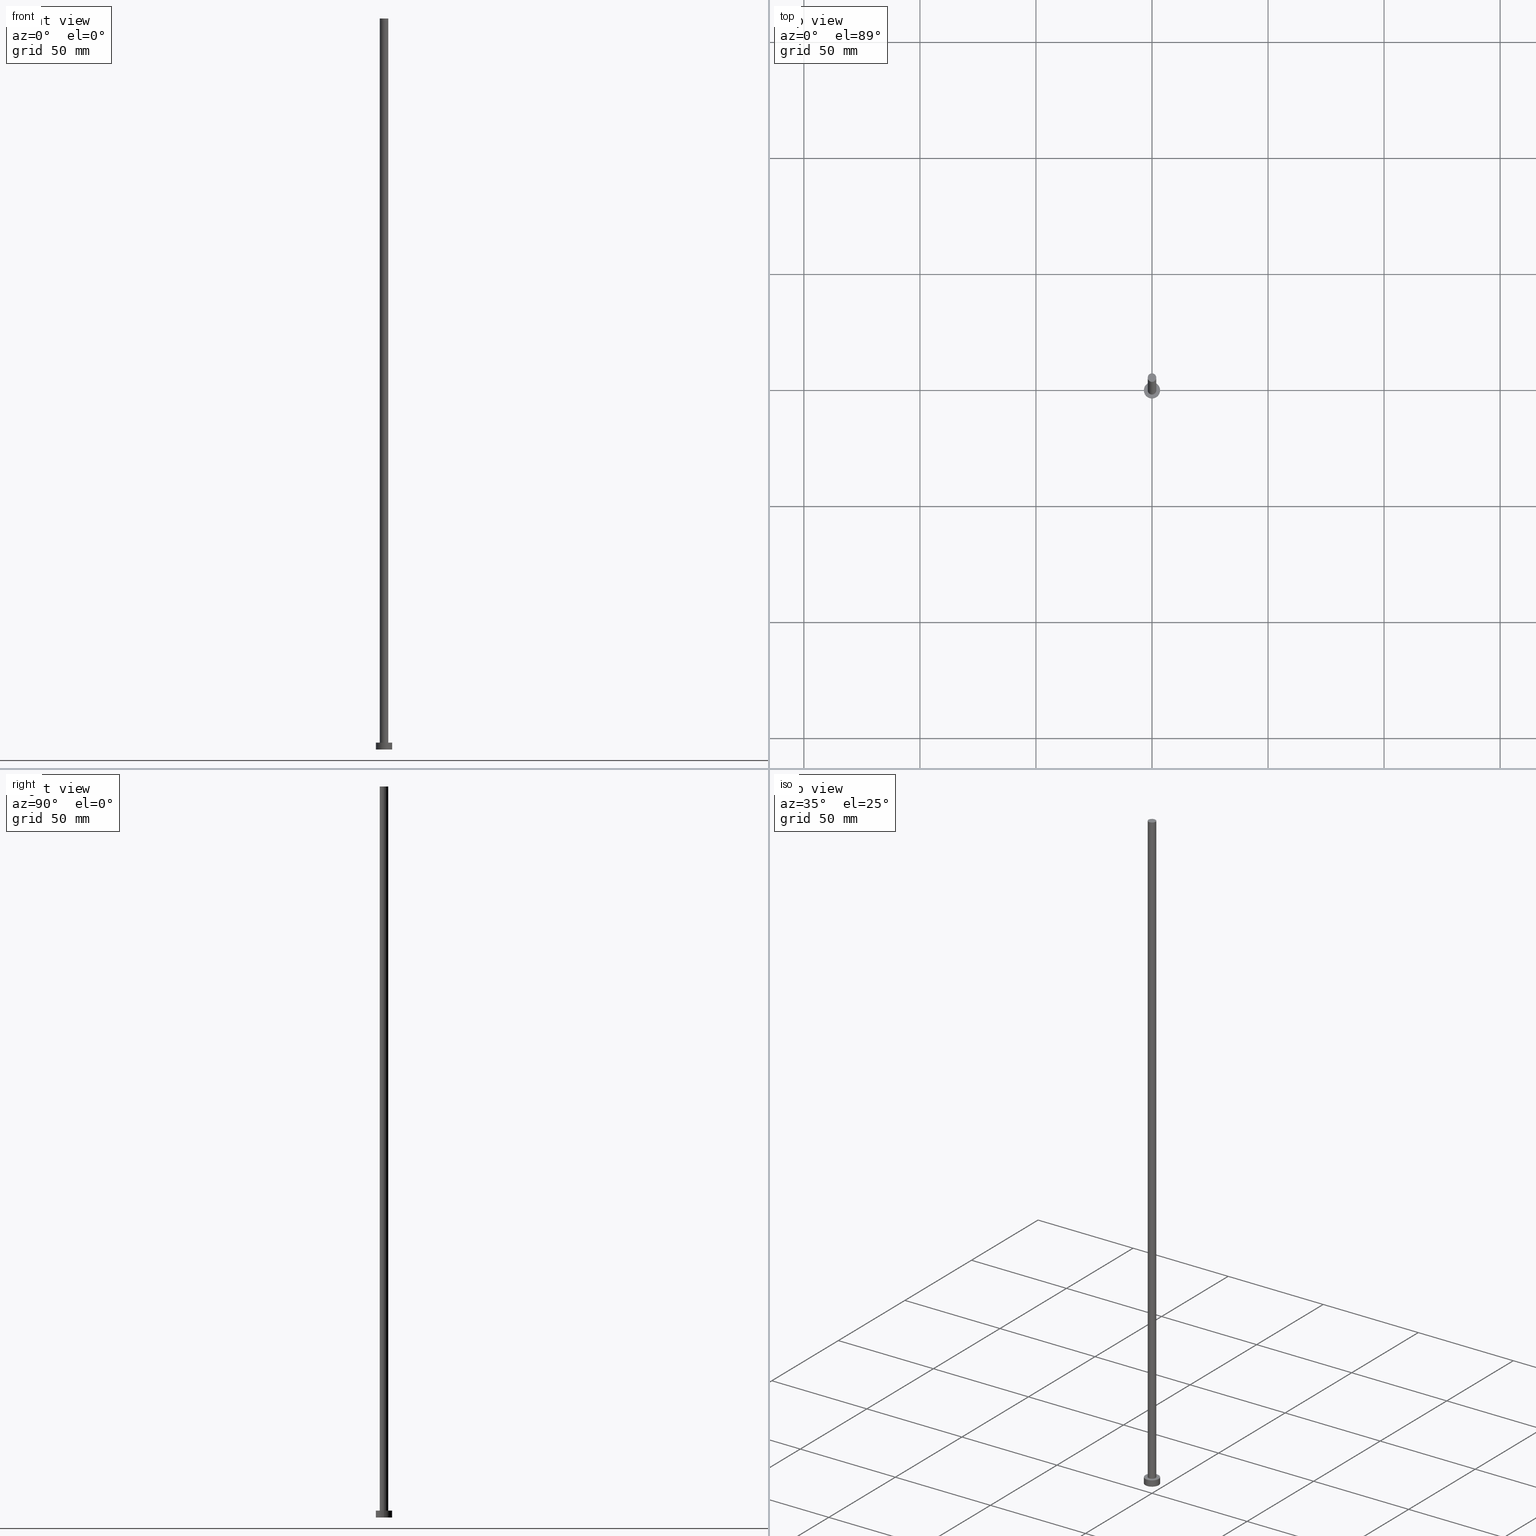
[diagram: canonical four-view strip — front | top / right | iso, engineering-drawing reading convention]
A machine part, canonical four-view strip (front | top / right | iso — engineering-drawing reading convention). The complete STEP part file that produces these views, byte-faithful:
ISO-10303-21;
HEADER;
FILE_DESCRIPTION (( 'STEP AP203' ),
    '1' );
FILE_NAME ('24b5.STEP',
    '2026-02-06T12:42:40',
    ( '' ),
    ( '' ),
    'SwSTEP 2.0',
    'SolidWorks 2019',
    '' );
FILE_SCHEMA (( 'CONFIG_CONTROL_DESIGN' ));
ENDSEC;

DATA;
#1 = DIRECTION ( 'NONE',  ( -0.000000000000000000, -0.000000000000000000, -1.000000000000000000 ) ) ;
#2 = DIRECTION ( 'NONE',  ( -0.000000000000000000, -0.000000000000000000, -1.000000000000000000 ) ) ;
#3 = CC_DESIGN_APPROVAL ( #163, ( #82 ) ) ;
#4 = APPROVAL ( #224, 'NEUR�EN�' ) ;
#5 = APPLICATION_PROTOCOL_DEFINITION ( 'international standard', 'config_control_design', 1994, #182 ) ;
#6 = DIRECTION ( 'NONE',  ( -0.000000000000000000, -0.000000000000000000, -1.000000000000000000 ) ) ;
#7 = AXIS2_PLACEMENT_3D ( 'NONE', #210, #159, #41 ) ;
#8 = COORDINATED_UNIVERSAL_TIME_OFFSET ( 1, 0, .AHEAD. ) ;
#9 = PRODUCT_RELATED_PRODUCT_CATEGORY ( 'detail', '', ( #123 ) ) ;
#10 = VECTOR ( 'NONE', #92, 1000.000000000000000 ) ;
#11 = PERSON_AND_ORGANIZATION ( #65, #38 ) ;
#12 = ADVANCED_FACE ( 'NONE', ( #39, #133 ), #172, .T. ) ;
#13 = DATE_AND_TIME ( #107, #143 ) ;
#14 = ORIENTED_EDGE ( 'NONE', *, *, #255, .T. ) ;
#15 = MECHANICAL_CONTEXT ( 'NONE', #225, 'mechanical' ) ;
#16 = VERTEX_POINT ( 'NONE', #95 ) ;
#17 = EDGE_LOOP ( 'NONE', ( #166, #248 ) ) ;
#18 = AXIS2_PLACEMENT_3D ( 'NONE', #131, #93, #176 ) ;
#19 = APPROVAL_STATUS ( 'not_yet_approved' ) ;
#20 = AXIS2_PLACEMENT_3D ( 'NONE', #74, #79, #150 ) ;
#21 = ORIENTED_EDGE ( 'NONE', *, *, #86, .F. ) ;
#22 = CARTESIAN_POINT ( 'NONE',  ( 1.850000000000000089, 2.265596578422603100E-16, 315.0000000000000000 ) ) ;
#23 = CALENDAR_DATE ( 2026, 6, 2 ) ;
#24 = CARTESIAN_POINT ( 'NONE',  ( 0.000000000000000000, 0.000000000000000000, 3.000000000000000000 ) ) ;
#25 = DATE_TIME_ROLE ( 'creation_date' ) ;
#26 = ORIENTED_EDGE ( 'NONE', *, *, #249, .F. ) ;
#27 = DIRECTION ( 'NONE',  ( 0.000000000000000000, 0.000000000000000000, 1.000000000000000000 ) ) ;
#28 = ORIENTED_EDGE ( 'NONE', *, *, #67, .F. ) ;
#29 = DIRECTION ( 'NONE',  ( 1.000000000000000000, 0.000000000000000000, 0.000000000000000000 ) ) ;
#30 = PRODUCT_DEFINITION_SHAPE ( 'NONE', 'NONE',  #186 ) ;
#31 = PERSON_AND_ORGANIZATION ( #65, #38 ) ;
#32 = AXIS2_PLACEMENT_3D ( 'NONE', #56, #192, #229 ) ;
#33 = EDGE_LOOP ( 'NONE', ( #118, #170 ) ) ;
#34 = CIRCLE ( 'NONE', #100, 3.500000000000000444 ) ;
#35 = ORIENTED_EDGE ( 'NONE', *, *, #228, .T. ) ;
#36 = CC_DESIGN_DATE_AND_TIME_ASSIGNMENT ( #194, #25, ( #186 ) ) ;
#37 = VERTEX_POINT ( 'NONE', #136 ) ;
#38 = ORGANIZATION ( 'NEUR�EN�', 'NEUR�EN�', '' ) ;
#39 = FACE_BOUND ( 'NONE', #17, .T. ) ;
#40 = CARTESIAN_POINT ( 'NONE',  ( -1.850000000000000089, 0.000000000000000000, 3.000000000000000000 ) ) ;
#41 = DIRECTION ( 'NONE',  ( 1.000000000000000000, 0.000000000000000000, 0.000000000000000000 ) ) ;
#42 = DIRECTION ( 'NONE',  ( -0.000000000000000000, -0.000000000000000000, -1.000000000000000000 ) ) ;
#43 = LOCAL_TIME ( 13, 42, 40.00000000000000000, #102 ) ;
#44 = DIRECTION ( 'NONE',  ( 1.000000000000000000, 0.000000000000000000, 0.000000000000000000 ) ) ;
#45 = DATE_AND_TIME ( #205, #70 ) ;
#46 = VECTOR ( 'NONE', #1, 1000.000000000000000 ) ;
#47 = CARTESIAN_POINT ( 'NONE',  ( 0.000000000000000000, 0.000000000000000000, 0.000000000000000000 ) ) ;
#48 = CARTESIAN_POINT ( 'NONE',  ( 0.000000000000000000, 0.000000000000000000, 315.0000000000000000 ) ) ;
#49 = APPROVAL_DATE_TIME ( #13, #54 ) ;
#50 = APPROVAL_DATE_TIME ( #215, #163 ) ;
#51 = VECTOR ( 'NONE', #96, 1000.000000000000000 ) ;
#52 = AXIS2_PLACEMENT_3D ( 'NONE', #63, #72, #29 ) ;
#53 = PERSON_AND_ORGANIZATION_ROLE ( 'creator' ) ;
#54 = APPROVAL ( #19, 'NEUR�EN�' ) ;
#55 = ORIENTED_EDGE ( 'NONE', *, *, #145, .T. ) ;
#56 = CARTESIAN_POINT ( 'NONE',  ( 0.000000000000000000, 0.000000000000000000, 3.000000000000000000 ) ) ;
#57 =( LENGTH_UNIT ( ) NAMED_UNIT ( * ) SI_UNIT ( .MILLI., .METRE. ) );
#58 = DESIGN_CONTEXT ( 'detailed design', #182, 'design' ) ;
#59 = CARTESIAN_POINT ( 'NONE',  ( 0.000000000000000000, 0.000000000000000000, 315.0000000000000000 ) ) ;
#60 = DIRECTION ( 'NONE',  ( 1.000000000000000000, 0.000000000000000000, 0.000000000000000000 ) ) ;
#61 = ORIENTED_EDGE ( 'NONE', *, *, #255, .F. ) ;
#62 = CYLINDRICAL_SURFACE ( 'NONE', #238, 3.500000000000000444 ) ;
#63 = CARTESIAN_POINT ( 'NONE',  ( 0.000000000000000000, 0.000000000000000000, 3.000000000000000000 ) ) ;
#64 = EDGE_LOOP ( 'NONE', ( #219, #28, #222, #55 ) ) ;
#65 = PERSON ( 'NEUR�EN�', 'NEUR�EN�', 'NEUR�EN�', ('NEUR�EN�'), ('NEUR�EN�'), ('NEUR�EN�') ) ;
#66 = CARTESIAN_POINT ( 'NONE',  ( -3.500000000000000444, 0.000000000000000000, 3.000000000000000000 ) ) ;
#67 = EDGE_CURVE ( 'NONE', #37, #16, #75, .T. ) ;
#68 = SECURITY_CLASSIFICATION ( '', '', #204 ) ;
#69 = ORIENTED_EDGE ( 'NONE', *, *, #130, .T. ) ;
#70 = LOCAL_TIME ( 13, 42, 40.00000000000000000, #243 ) ;
#71 = ADVANCED_FACE ( 'NONE', ( #129 ), #232, .T. ) ;
#72 = DIRECTION ( 'NONE',  ( 0.000000000000000000, 0.000000000000000000, 1.000000000000000000 ) ) ;
#73 = CC_DESIGN_SECURITY_CLASSIFICATION ( #68, ( #82 ) ) ;
#74 = CARTESIAN_POINT ( 'NONE',  ( 0.000000000000000000, 0.000000000000000000, 315.0000000000000000 ) ) ;
#75 = CIRCLE ( 'NONE', #187, 1.850000000000000089 ) ;
#76 = MANIFOLD_SOLID_BREP ( 'P�idat vysunut�m3', #226 ) ;
#77 = LINE ( 'NONE', #22, #185 ) ;
#78 = DIRECTION ( 'NONE',  ( 1.000000000000000000, 0.000000000000000000, -0.000000000000000000 ) ) ;
#79 = DIRECTION ( 'NONE',  ( 0.000000000000000000, 0.000000000000000000, 1.000000000000000000 ) ) ;
#80 = PERSON_AND_ORGANIZATION ( #65, #38 ) ;
#81 =( NAMED_UNIT ( * ) SI_UNIT ( $, .STERADIAN. ) SOLID_ANGLE_UNIT ( ) );
#82 = PRODUCT_DEFINITION_FORMATION_WITH_SPECIFIED_SOURCE ( 'LIBOVOLN�', '', #123, .NOT_KNOWN. ) ;
#83 = DIRECTION ( 'NONE',  ( 1.000000000000000000, 0.000000000000000000, -0.000000000000000000 ) ) ;
#84 = DIRECTION ( 'NONE',  ( -1.000000000000000000, 0.000000000000000000, 0.000000000000000000 ) ) ;
#85 = CARTESIAN_POINT ( 'NONE',  ( 0.000000000000000000, 0.000000000000000000, 3.000000000000000000 ) ) ;
#86 = EDGE_CURVE ( 'NONE', #37, #137, #120, .T. ) ;
#87 = PERSON_AND_ORGANIZATION ( #65, #38 ) ;
#88 = AXIS2_PLACEMENT_3D ( 'NONE', #48, #42, #199 ) ;
#89 = EDGE_LOOP ( 'NONE', ( #250, #113 ) ) ;
#90 = DIRECTION ( 'NONE',  ( 0.000000000000000000, 0.000000000000000000, 1.000000000000000000 ) ) ;
#91 = CARTESIAN_POINT ( 'NONE',  ( 0.000000000000000000, 0.000000000000000000, 3.000000000000000000 ) ) ;
#92 = DIRECTION ( 'NONE',  ( -0.000000000000000000, -0.000000000000000000, -1.000000000000000000 ) ) ;
#93 = DIRECTION ( 'NONE',  ( 0.000000000000000000, 0.000000000000000000, 1.000000000000000000 ) ) ;
#94 = FACE_OUTER_BOUND ( 'NONE', #177, .T. ) ;
#95 = CARTESIAN_POINT ( 'NONE',  ( 1.850000000000000089, 2.265596578422603100E-16, 315.0000000000000000 ) ) ;
#96 = DIRECTION ( 'NONE',  ( -0.000000000000000000, -0.000000000000000000, -1.000000000000000000 ) ) ;
#97 = APPLICATION_PROTOCOL_DEFINITION ( 'international standard', 'config_control_design', 1994, #225 ) ;
#98 = LINE ( 'NONE', #175, #51 ) ;
#99 = PERSON_AND_ORGANIZATION_ROLE ( 'classification_officer' ) ;
#100 = AXIS2_PLACEMENT_3D ( 'NONE', #47, #132, #44 ) ;
#101 = PERSON_AND_ORGANIZATION_ROLE ( 'creator' ) ;
#102 = COORDINATED_UNIVERSAL_TIME_OFFSET ( 1, 0, .AHEAD. ) ;
#103 = PERSON_AND_ORGANIZATION_ROLE ( 'design_owner' ) ;
#104 = ORIENTED_EDGE ( 'NONE', *, *, #228, .F. ) ;
#105 = APPROVAL_PERSON_ORGANIZATION ( #154, #163, #198 ) ;
#106 = EDGE_LOOP ( 'NONE', ( #169, #126, #69, #21 ) ) ;
#107 = CALENDAR_DATE ( 2026, 6, 2 ) ;
#108 = AXIS2_PLACEMENT_3D ( 'NONE', #174, #27, #200 ) ;
#109 = ORIENTED_EDGE ( 'NONE', *, *, #119, .T. ) ;
#110 = EDGE_CURVE ( 'NONE', #124, #127, #247, .T. ) ;
#111 = COORDINATED_UNIVERSAL_TIME_OFFSET ( 1, 0, .AHEAD. ) ;
#112 = CIRCLE ( 'NONE', #7, 3.500000000000000444 ) ;
#113 = ORIENTED_EDGE ( 'NONE', *, *, #189, .T. ) ;
#114 = ORIENTED_EDGE ( 'NONE', *, *, #202, .F. ) ;
#115 = CARTESIAN_POINT ( 'NONE',  ( -1.850000000000000089, 0.000000000000000000, 315.0000000000000000 ) ) ;
#116 = DATE_AND_TIME ( #23, #181 ) ;
#117 = CC_DESIGN_PERSON_AND_ORGANIZATION_ASSIGNMENT ( #87, #125, ( #82 ) ) ;
#118 = ORIENTED_EDGE ( 'NONE', *, *, #249, .T. ) ;
#119 = EDGE_CURVE ( 'NONE', #196, #127, #148, .T. ) ;
#120 = LINE ( 'NONE', #115, #10 ) ;
#121 = ADVANCED_BREP_SHAPE_REPRESENTATION ( '24b5', ( #76, #18 ), #146 ) ;
#122 = PERSON_AND_ORGANIZATION ( #65, #38 ) ;
#123 = PRODUCT ( '24b5', '24b5', '', ( #15 ) ) ;
#124 = VERTEX_POINT ( 'NONE', #230 ) ;
#125 = PERSON_AND_ORGANIZATION_ROLE ( 'design_supplier' ) ;
#126 = ORIENTED_EDGE ( 'NONE', *, *, #142, .T. ) ;
#127 = VERTEX_POINT ( 'NONE', #157 ) ;
#128 = CARTESIAN_POINT ( 'NONE',  ( 3.500000000000000444, 4.286263797015737088E-16, 3.000000000000000000 ) ) ;
#129 = FACE_OUTER_BOUND ( 'NONE', #106, .T. ) ;
#130 = EDGE_CURVE ( 'NONE', #240, #137, #253, .T. ) ;
#131 = CARTESIAN_POINT ( 'NONE',  ( 0.000000000000000000, 0.000000000000000000, 0.000000000000000000 ) ) ;
#132 = DIRECTION ( 'NONE',  ( 0.000000000000000000, 0.000000000000000000, 1.000000000000000000 ) ) ;
#133 = FACE_OUTER_BOUND ( 'NONE', #33, .T. ) ;
#134 = CARTESIAN_POINT ( 'NONE',  ( 0.000000000000000000, 0.000000000000000000, 3.000000000000000000 ) ) ;
#135 = SHAPE_DEFINITION_REPRESENTATION ( #30, #121 ) ;
#136 = CARTESIAN_POINT ( 'NONE',  ( -1.850000000000000089, 0.000000000000000000, 315.0000000000000000 ) ) ;
#137 = VERTEX_POINT ( 'NONE', #40 ) ;
#138 = AXIS2_PLACEMENT_3D ( 'NONE', #85, #217, #164 ) ;
#139 = ORIENTED_EDGE ( 'NONE', *, *, #110, .T. ) ;
#140 = CYLINDRICAL_SURFACE ( 'NONE', #158, 1.850000000000000089 ) ;
#141 = CC_DESIGN_DATE_AND_TIME_ASSIGNMENT ( #45, #179, ( #68 ) ) ;
#142 = EDGE_CURVE ( 'NONE', #16, #240, #77, .T. ) ;
#143 = LOCAL_TIME ( 13, 42, 40.00000000000000000, #8 ) ;
#144 = AXIS2_PLACEMENT_3D ( 'NONE', #91, #252, #78 ) ;
#145 = EDGE_CURVE ( 'NONE', #137, #240, #165, .T. ) ;
#146 =( GEOMETRIC_REPRESENTATION_CONTEXT ( 3 ) GLOBAL_UNCERTAINTY_ASSIGNED_CONTEXT ( ( #208 ) ) GLOBAL_UNIT_ASSIGNED_CONTEXT ( ( #57, #152, #81 ) ) REPRESENTATION_CONTEXT ( 'NONE', 'WORKASPACE' ) );
#147 = PERSON_AND_ORGANIZATION ( #65, #38 ) ;
#148 = LINE ( 'NONE', #180, #46 ) ;
#149 = APPROVAL_PERSON_ORGANIZATION ( #147, #54, #221 ) ;
#150 = DIRECTION ( 'NONE',  ( 1.000000000000000000, 0.000000000000000000, -0.000000000000000000 ) ) ;
#151 = CALENDAR_DATE ( 2026, 6, 2 ) ;
#152 =( NAMED_UNIT ( * ) PLANE_ANGLE_UNIT ( ) SI_UNIT ( $, .RADIAN. ) );
#153 = DIRECTION ( 'NONE',  ( -1.000000000000000000, 0.000000000000000000, 0.000000000000000000 ) ) ;
#154 = PERSON_AND_ORGANIZATION ( #65, #38 ) ;
#155 = ADVANCED_FACE ( 'NONE', ( #213 ), #171, .F. ) ;
#156 = PLANE ( 'NONE',  #20 ) ;
#157 = CARTESIAN_POINT ( 'NONE',  ( 3.500000000000000444, 4.286263797015737088E-16, 0.000000000000000000 ) ) ;
#158 = AXIS2_PLACEMENT_3D ( 'NONE', #183, #6, #84 ) ;
#159 = DIRECTION ( 'NONE',  ( 0.000000000000000000, 0.000000000000000000, 1.000000000000000000 ) ) ;
#160 = CIRCLE ( 'NONE', #191, 1.850000000000000089 ) ;
#161 = ADVANCED_FACE ( 'NONE', ( #211 ), #156, .T. ) ;
#162 = CYLINDRICAL_SURFACE ( 'NONE', #138, 3.500000000000000444 ) ;
#163 = APPROVAL ( #212, 'NEUR�EN�' ) ;
#164 = DIRECTION ( 'NONE',  ( -1.000000000000000000, 0.000000000000000000, 0.000000000000000000 ) ) ;
#165 = CIRCLE ( 'NONE', #214, 1.850000000000000089 ) ;
#166 = ORIENTED_EDGE ( 'NONE', *, *, #145, .F. ) ;
#167 = APPROVAL_ROLE ( '' ) ;
#168 = APPROVAL_PERSON_ORGANIZATION ( #11, #4, #167 ) ;
#169 = ORIENTED_EDGE ( 'NONE', *, *, #189, .F. ) ;
#170 = ORIENTED_EDGE ( 'NONE', *, *, #202, .T. ) ;
#171 = PLANE ( 'NONE',  #241 ) ;
#172 = PLANE ( 'NONE',  #144 ) ;
#173 = DIRECTION ( 'NONE',  ( -0.000000000000000000, -0.000000000000000000, -1.000000000000000000 ) ) ;
#174 = CARTESIAN_POINT ( 'NONE',  ( 0.000000000000000000, 0.000000000000000000, 0.000000000000000000 ) ) ;
#175 = CARTESIAN_POINT ( 'NONE',  ( -3.500000000000000444, 0.000000000000000000, 3.000000000000000000 ) ) ;
#176 = DIRECTION ( 'NONE',  ( 1.000000000000000000, 0.000000000000000000, 0.000000000000000000 ) ) ;
#177 = EDGE_LOOP ( 'NONE', ( #114, #109, #35, #61 ) ) ;
#178 = DIRECTION ( 'NONE',  ( 0.000000000000000000, 0.000000000000000000, 1.000000000000000000 ) ) ;
#179 = DATE_TIME_ROLE ( 'classification_date' ) ;
#180 = CARTESIAN_POINT ( 'NONE',  ( 3.500000000000000444, 4.286263797015737088E-16, 3.000000000000000000 ) ) ;
#181 = LOCAL_TIME ( 13, 42, 40.00000000000000000, #111 ) ;
#182 = APPLICATION_CONTEXT ( 'configuration controlled 3d designs of mechanical parts and assemblies' ) ;
#183 = CARTESIAN_POINT ( 'NONE',  ( 0.000000000000000000, 0.000000000000000000, 315.0000000000000000 ) ) ;
#184 = LOCAL_TIME ( 13, 42, 40.00000000000000000, #220 ) ;
#185 = VECTOR ( 'NONE', #2, 1000.000000000000000 ) ;
#186 = PRODUCT_DEFINITION ( 'NEZN�M�', '', #82, #58 ) ;
#187 = AXIS2_PLACEMENT_3D ( 'NONE', #231, #237, #60 ) ;
#188 = CC_DESIGN_PERSON_AND_ORGANIZATION_ASSIGNMENT ( #122, #53, ( #82 ) ) ;
#189 = EDGE_CURVE ( 'NONE', #16, #37, #160, .T. ) ;
#190 = CC_DESIGN_APPROVAL ( #4, ( #186 ) ) ;
#191 = AXIS2_PLACEMENT_3D ( 'NONE', #59, #236, #197 ) ;
#192 = DIRECTION ( 'NONE',  ( 0.000000000000000000, 0.000000000000000000, 1.000000000000000000 ) ) ;
#193 = FACE_OUTER_BOUND ( 'NONE', #254, .T. ) ;
#194 = DATE_AND_TIME ( #151, #43 ) ;
#195 = CARTESIAN_POINT ( 'NONE',  ( 1.850000000000000089, 2.265596578422603100E-16, 3.000000000000000000 ) ) ;
#196 = VERTEX_POINT ( 'NONE', #128 ) ;
#197 = DIRECTION ( 'NONE',  ( 1.000000000000000000, 0.000000000000000000, 0.000000000000000000 ) ) ;
#198 = APPROVAL_ROLE ( '' ) ;
#199 = DIRECTION ( 'NONE',  ( -1.000000000000000000, 0.000000000000000000, 0.000000000000000000 ) ) ;
#200 = DIRECTION ( 'NONE',  ( 1.000000000000000000, 0.000000000000000000, 0.000000000000000000 ) ) ;
#201 = DIRECTION ( 'NONE',  ( 1.000000000000000000, 0.000000000000000000, 0.000000000000000000 ) ) ;
#202 = EDGE_CURVE ( 'NONE', #196, #234, #112, .T. ) ;
#203 = EDGE_LOOP ( 'NONE', ( #223, #104 ) ) ;
#204 = SECURITY_CLASSIFICATION_LEVEL ( 'unclassified' ) ;
#205 = CALENDAR_DATE ( 2026, 6, 2 ) ;
#206 = CC_DESIGN_PERSON_AND_ORGANIZATION_ASSIGNMENT ( #31, #103, ( #123 ) ) ;
#207 = ADVANCED_FACE ( 'NONE', ( #193 ), #62, .T. ) ;
#208 = UNCERTAINTY_MEASURE_WITH_UNIT (LENGTH_MEASURE( 1.000000000000000082E-05 ), #57, 'distance_accuracy_value', 'NONE');
#209 = CC_DESIGN_APPROVAL ( #54, ( #68 ) ) ;
#210 = CARTESIAN_POINT ( 'NONE',  ( 0.000000000000000000, 0.000000000000000000, 3.000000000000000000 ) ) ;
#211 = FACE_OUTER_BOUND ( 'NONE', #89, .T. ) ;
#212 = APPROVAL_STATUS ( 'not_yet_approved' ) ;
#213 = FACE_OUTER_BOUND ( 'NONE', #203, .T. ) ;
#214 = AXIS2_PLACEMENT_3D ( 'NONE', #134, #90, #201 ) ;
#215 = DATE_AND_TIME ( #242, #184 ) ;
#216 = APPROVAL_DATE_TIME ( #116, #4 ) ;
#217 = DIRECTION ( 'NONE',  ( -0.000000000000000000, -0.000000000000000000, -1.000000000000000000 ) ) ;
#218 = CIRCLE ( 'NONE', #52, 3.500000000000000444 ) ;
#219 = ORIENTED_EDGE ( 'NONE', *, *, #142, .F. ) ;
#220 = COORDINATED_UNIVERSAL_TIME_OFFSET ( 1, 0, .AHEAD. ) ;
#221 = APPROVAL_ROLE ( '' ) ;
#222 = ORIENTED_EDGE ( 'NONE', *, *, #86, .T. ) ;
#223 = ORIENTED_EDGE ( 'NONE', *, *, #110, .F. ) ;
#224 = APPROVAL_STATUS ( 'not_yet_approved' ) ;
#225 = APPLICATION_CONTEXT ( 'configuration controlled 3d designs of mechanical parts and assemblies' ) ;
#226 = CLOSED_SHELL ( 'NONE', ( #71, #233, #207, #12, #155, #239, #161 ) ) ;
#227 = ORIENTED_EDGE ( 'NONE', *, *, #119, .F. ) ;
#228 = EDGE_CURVE ( 'NONE', #127, #124, #34, .T. ) ;
#229 = DIRECTION ( 'NONE',  ( 1.000000000000000000, 0.000000000000000000, 0.000000000000000000 ) ) ;
#230 = CARTESIAN_POINT ( 'NONE',  ( -3.500000000000000444, 0.000000000000000000, 0.000000000000000000 ) ) ;
#231 = CARTESIAN_POINT ( 'NONE',  ( 0.000000000000000000, 0.000000000000000000, 315.0000000000000000 ) ) ;
#232 = CYLINDRICAL_SURFACE ( 'NONE', #88, 1.850000000000000089 ) ;
#233 = ADVANCED_FACE ( 'NONE', ( #94 ), #162, .T. ) ;
#234 = VERTEX_POINT ( 'NONE', #66 ) ;
#235 = PERSON_AND_ORGANIZATION ( #65, #38 ) ;
#236 = DIRECTION ( 'NONE',  ( 0.000000000000000000, 0.000000000000000000, 1.000000000000000000 ) ) ;
#237 = DIRECTION ( 'NONE',  ( 0.000000000000000000, 0.000000000000000000, 1.000000000000000000 ) ) ;
#238 = AXIS2_PLACEMENT_3D ( 'NONE', #24, #173, #153 ) ;
#239 = ADVANCED_FACE ( 'NONE', ( #245 ), #140, .T. ) ;
#240 = VERTEX_POINT ( 'NONE', #195 ) ;
#241 = AXIS2_PLACEMENT_3D ( 'NONE', #251, #178, #83 ) ;
#242 = CALENDAR_DATE ( 2026, 6, 2 ) ;
#243 = COORDINATED_UNIVERSAL_TIME_OFFSET ( 1, 0, .AHEAD. ) ;
#244 = CC_DESIGN_PERSON_AND_ORGANIZATION_ASSIGNMENT ( #80, #101, ( #186 ) ) ;
#245 = FACE_OUTER_BOUND ( 'NONE', #64, .T. ) ;
#246 = CC_DESIGN_PERSON_AND_ORGANIZATION_ASSIGNMENT ( #235, #99, ( #68 ) ) ;
#247 = CIRCLE ( 'NONE', #108, 3.500000000000000444 ) ;
#248 = ORIENTED_EDGE ( 'NONE', *, *, #130, .F. ) ;
#249 = EDGE_CURVE ( 'NONE', #234, #196, #218, .T. ) ;
#250 = ORIENTED_EDGE ( 'NONE', *, *, #67, .T. ) ;
#251 = CARTESIAN_POINT ( 'NONE',  ( 0.000000000000000000, 0.000000000000000000, 0.000000000000000000 ) ) ;
#252 = DIRECTION ( 'NONE',  ( 0.000000000000000000, 0.000000000000000000, 1.000000000000000000 ) ) ;
#253 = CIRCLE ( 'NONE', #32, 1.850000000000000089 ) ;
#254 = EDGE_LOOP ( 'NONE', ( #227, #26, #14, #139 ) ) ;
#255 = EDGE_CURVE ( 'NONE', #234, #124, #98, .T. ) ;
ENDSEC;
END-ISO-10303-21;
